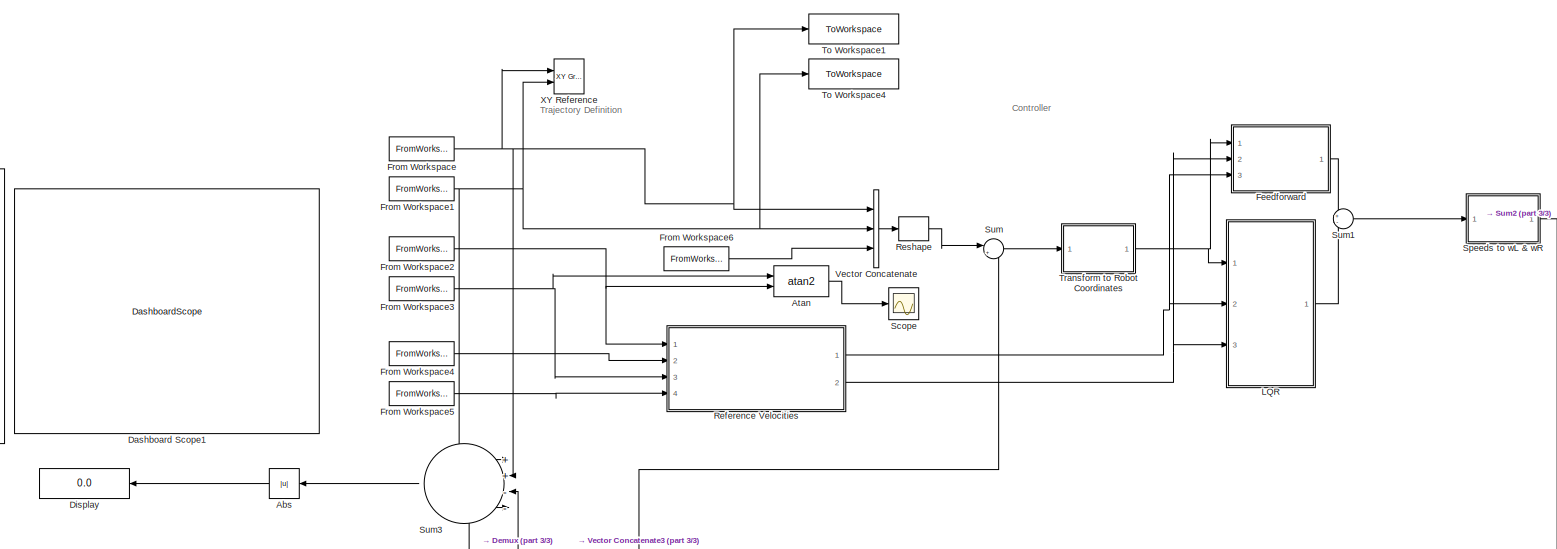
[diagram: root canvas - part 1/3, full width, top band]
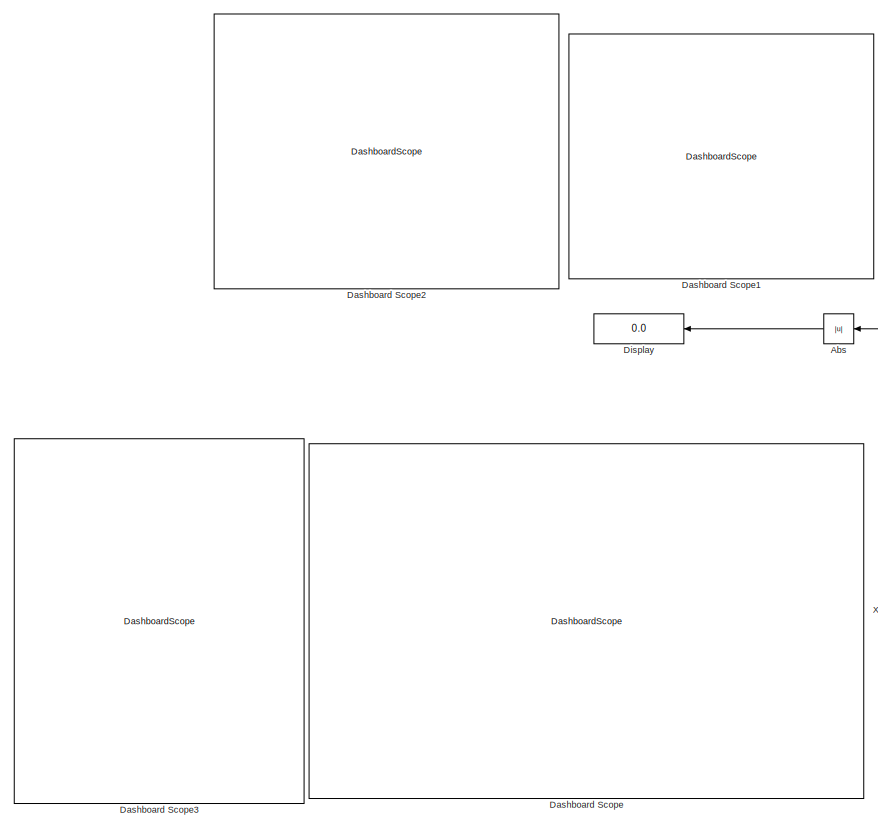
[diagram: root canvas - part 2/3, left side, full height]
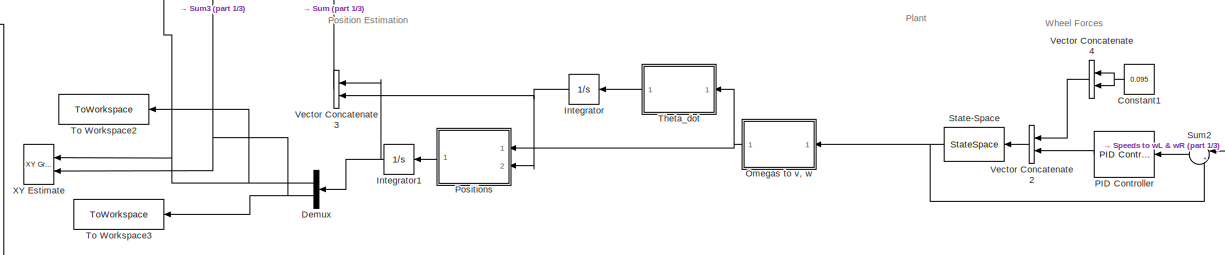
[diagram: root canvas - part 3/3, bottom right region]
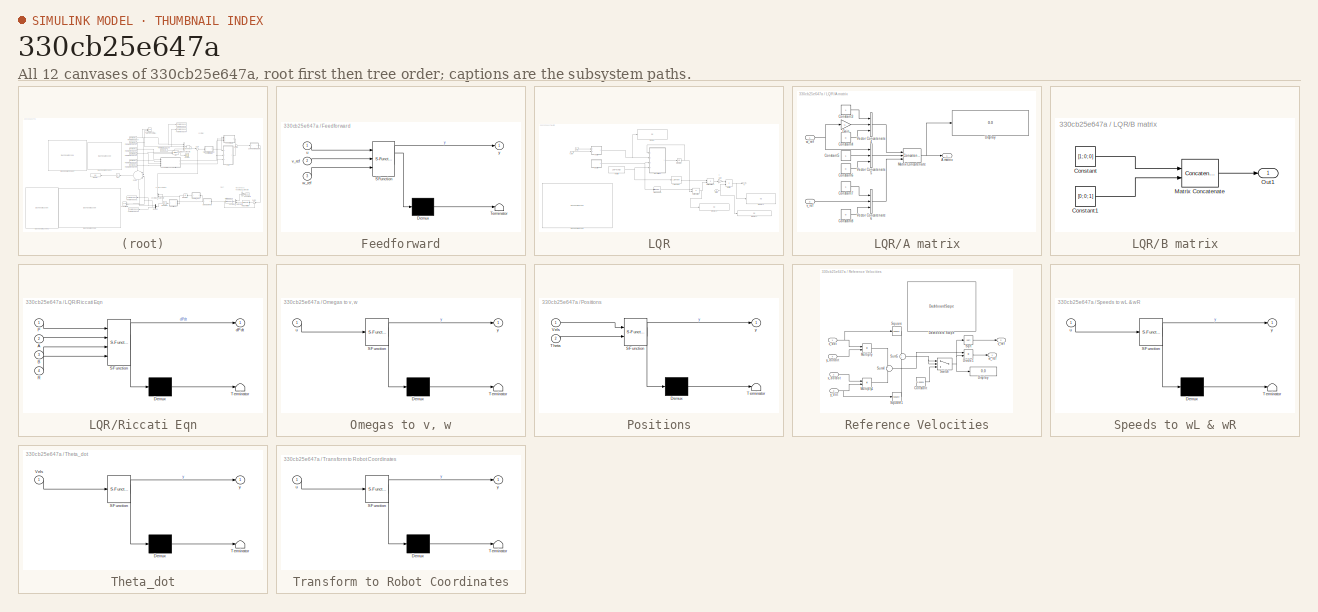
[diagram: thumbnail index - all 12 canvases of the model, root first then tree order]
MODEL slx_330cb25e647a
KIND model
CONFIG AbsTol = auto
CONFIG EnableMultiTasking = off
CONFIG FixedStep = auto
CONFIG MaxStep = auto
CONFIG MinStep = auto
CONFIG RelTol = 1e-3
CONFIG SampleTimeConstraint = Unconstrained
CONFIG Solver = VariableStepAuto
CONFIG SolverName = VariableStepAuto
CONFIG StartTime = 0.0
CONFIG StopTime = 25
BLOCK [Abs] Abs
  SaturateOnIntegerOverflow = off
BLOCK [Trigonometry] Atan
  Operator = atan2
  Ports = [2, 1]
BLOCK [Constant] Constant1
  Value = 0.095
BLOCK [DashboardScope] Dashboard Scope
BLOCK [DashboardScope] Dashboard Scope1
BLOCK [DashboardScope] Dashboard Scope2
BLOCK [DashboardScope] Dashboard Scope3
BLOCK [Demux] Demux
  Outputs = 2
  Ports = [1, 2]
BLOCK [Display] Display
  Decimation = 1
  Ports = [1]
BLOCK [SubSystem] Feedforward
  ErrorFcn = Stateflow.Translate.translate
  PermitHierarchicalResolution = ExplicitOnly
  Ports = [3, 1]
  RequestExecContextInheritance = off
  SFBlockType = MATLAB Function
  TreatAsAtomicUnit = on
BLOCK [Demux] Feedforward/ Demux 
  Outputs = 1
  Ports = [1, 1]
BLOCK [S-Function] Feedforward/ SFunction 
  EnableBusSupport = on
  FunctionName = sf_sfun
  PortCounts = [3 2]
  Ports = [3, 2]
  SFcnIsStateOwnerBlock = off
  SFunctionDeploymentMode = off
  Tag = Stateflow S-Function 3
BLOCK [Terminator] Feedforward/ Terminator 
BLOCK [Inport] Feedforward/u
BLOCK [Inport] Feedforward/v_ref
  Port = 2
BLOCK [Inport] Feedforward/w_ref
  Port = 3
BLOCK [Outport] Feedforward/y
  VectorParamsAs1DForOutWhenUnconnected = off
BLOCK [FromWorkspace] From Workspace
  VariableName = X_trajectory_ts
BLOCK [FromWorkspace] From Workspace1
  VariableName = Y_trajectory_ts
BLOCK [FromWorkspace] From Workspace2
  VariableName = X_dt_ts
BLOCK [FromWorkspace] From Workspace3
  VariableName = Y_dt_ts
BLOCK [FromWorkspace] From Workspace4
  VariableName = X_ddt_ts
BLOCK [FromWorkspace] From Workspace5
  VariableName = Y_ddt_ts
BLOCK [FromWorkspace] From Workspace6
  VariableName = theta_ts
BLOCK [Integrator] Integrator
  Ports = [1, 1]
  WrapState = on
BLOCK [Integrator] Integrator1
  Ports = [1, 1]
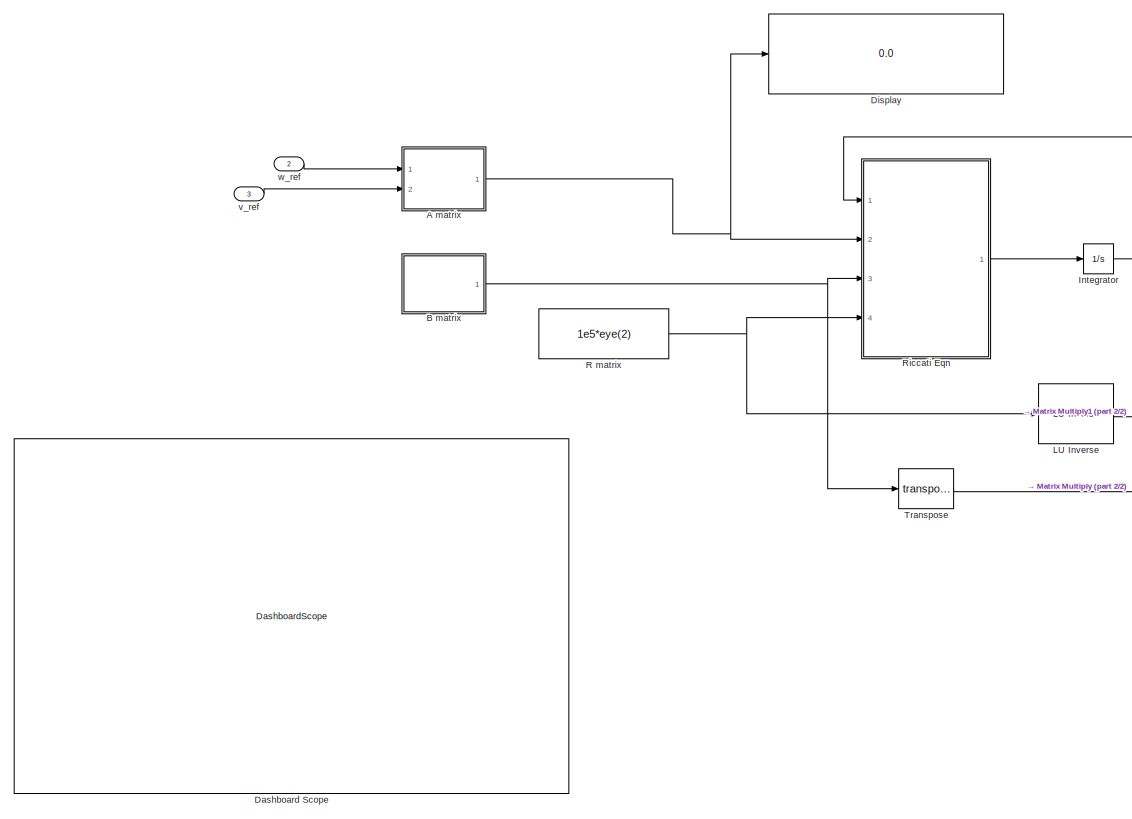
[diagram: LQR - part 1/2, left side, full height]
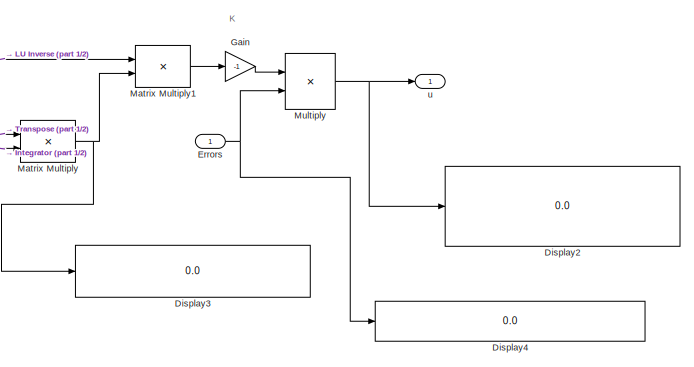
[diagram: LQR - part 2/2, middle right region]
BLOCK [SubSystem] LQR
  Ports = [3, 1]
  RequestExecContextInheritance = off
BLOCK [Reference] LQR/ LU Inverse  REF=dspinverses/ LU Inverse
  Ports = [1, 1]
  SourceBlock = dspinverses/ LU Inverse
  SourceProductBaseCode = DS
  SourceType = LU Inverse
BLOCK [SubSystem] LQR/A matrix
  Ports = [2, 1]
  RequestExecContextInheritance = off
BLOCK [Outport] LQR/A matrix/A matrix
  VectorParamsAs1DForOutWhenUnconnected = off
BLOCK [Constant] LQR/A matrix/Constant3
BLOCK [Constant] LQR/A matrix/Constant4
  Value = 0
BLOCK [Constant] LQR/A matrix/Constant5
BLOCK [Constant] LQR/A matrix/Constant6
  Value = 0
BLOCK [Constant] LQR/A matrix/Constant7
BLOCK [Constant] LQR/A matrix/Constant8
  Value = 0
BLOCK [Display] LQR/A matrix/Display
  Decimation = 1
  Ports = [1]
BLOCK [Gain] LQR/A matrix/Gain
  Gain = -1
BLOCK [Concatenate] LQR/A matrix/Matrix Concatenate
  ConcatenateDimension = 2
  Mode = Multidimensional array
  NumInputs = 3
  Ports = [3, 1]
BLOCK [Concatenate] LQR/A matrix/Vector Concatenate4
  NumInputs = 3
  Ports = [3, 1]
BLOCK [Concatenate] LQR/A matrix/Vector Concatenate5
  NumInputs = 3
  Ports = [3, 1]
BLOCK [Concatenate] LQR/A matrix/Vector Concatenate6
  NumInputs = 3
  Ports = [3, 1]
BLOCK [Inport] LQR/A matrix/v_ref
  Port = 2
  VarSizeSig = No
BLOCK [Inport] LQR/A matrix/w_ref
BLOCK [SubSystem] LQR/B matrix
  Ports = [0, 1]
  RequestExecContextInheritance = off
BLOCK [Constant] LQR/B matrix/Constant
  Value = [1; 0; 0]
  VectorParams1D = off
BLOCK [Constant] LQR/B matrix/Constant1
  Value = [0; 0; 1]
  VectorParams1D = off
BLOCK [Concatenate] LQR/B matrix/Matrix Concatenate
  ConcatenateDimension = 2
  Mode = Multidimensional array
  Ports = [2, 1]
BLOCK [Outport] LQR/B matrix/Out1
  VectorParamsAs1DForOutWhenUnconnected = off
BLOCK [DashboardScope] LQR/Dashboard Scope
BLOCK [Display] LQR/Display
  Decimation = 1
  Ports = [1]
BLOCK [Display] LQR/Display2
  Decimation = 1
  Ports = [1]
BLOCK [Display] LQR/Display3
  Decimation = 1
  Ports = [1]
BLOCK [Display] LQR/Display4
  Decimation = 1
  Ports = [1]
BLOCK [Inport] LQR/Errors
BLOCK [Gain] LQR/Gain
  Gain = -1
BLOCK [Integrator] LQR/Integrator
  Ports = [1, 1]
BLOCK [Product] LQR/Matrix Multiply
  Multiplication = Matrix(*)
  Ports = [2, 1]
BLOCK [Product] LQR/Matrix Multiply1
  Multiplication = Matrix(*)
  Ports = [2, 1]
BLOCK [Product] LQR/Multiply
  Multiplication = Matrix(*)
  Ports = [2, 1]
BLOCK [Constant] LQR/R matrix
  Value = 1e5*eye(2)
  VectorParams1D = off
BLOCK [SubSystem] LQR/Riccati Eqn
  ErrorFcn = Stateflow.Translate.translate
  PermitHierarchicalResolution = ExplicitOnly
  Ports = [4, 1]
  RequestExecContextInheritance = off
  SFBlockType = MATLAB Function
  TreatAsAtomicUnit = on
BLOCK [Demux] LQR/Riccati Eqn/ Demux 
  Outputs = 1
  Ports = [1, 1]
BLOCK [S-Function] LQR/Riccati Eqn/ SFunction 
  EnableBusSupport = on
  FunctionName = sf_sfun
  PortCounts = [4 2]
  Ports = [4, 2]
  SFcnIsStateOwnerBlock = off
  SFunctionDeploymentMode = off
  Tag = Stateflow S-Function 8
BLOCK [Terminator] LQR/Riccati Eqn/ Terminator 
BLOCK [Inport] LQR/Riccati Eqn/A
  Port = 2
BLOCK [Inport] LQR/Riccati Eqn/B
  Port = 3
BLOCK [Inport] LQR/Riccati Eqn/P
BLOCK [Inport] LQR/Riccati Eqn/R
  Port = 4
BLOCK [Outport] LQR/Riccati Eqn/dPdt
  VectorParamsAs1DForOutWhenUnconnected = off
BLOCK [Math] LQR/Transpose
  Operator = transpose
  Ports = [1, 1]
  SignedPower = on
BLOCK [Outport] LQR/u
  VectorParamsAs1DForOutWhenUnconnected = off
BLOCK [Inport] LQR/v_ref
  Port = 3
BLOCK [Inport] LQR/w_ref
  Port = 2
BLOCK [SubSystem] Omegas to v, w
  ErrorFcn = Stateflow.Translate.translate
  PermitHierarchicalResolution = ExplicitOnly
  Ports = [1, 1]
  RequestExecContextInheritance = off
  SFBlockType = MATLAB Function
  TreatAsAtomicUnit = on
BLOCK [Demux] Omegas to v, w/ Demux 
  Outputs = 1
  Ports = [1, 1]
BLOCK [S-Function] Omegas to v, w/ SFunction 
  EnableBusSupport = on
  FunctionName = sf_sfun
  PortCounts = [1 2]
  Ports = [1, 2]
  SFcnIsStateOwnerBlock = off
  SFunctionDeploymentMode = off
  Tag = Stateflow S-Function 7
BLOCK [Terminator] Omegas to v, w/ Terminator 
BLOCK [Inport] Omegas to v, w/u
BLOCK [Outport] Omegas to v, w/y
  VectorParamsAs1DForOutWhenUnconnected = off
BLOCK [Reference] PID Controller  REF=simulink/Continuous/PID Controller
  Ports = [1, 1]
  SourceBlock = simulink/Continuous/PID Controller
  SourceProductBaseCode = SL
  SourceType = PID 1dof
BLOCK [SubSystem] Positions
  ErrorFcn = Stateflow.Translate.translate
  PermitHierarchicalResolution = ExplicitOnly
  Ports = [2, 1]
  RequestExecContextInheritance = off
  SFBlockType = MATLAB Function
  TreatAsAtomicUnit = on
BLOCK [Demux] Positions/ Demux 
  Outputs = 1
  Ports = [1, 1]
BLOCK [S-Function] Positions/ SFunction 
  EnableBusSupport = on
  FunctionName = sf_sfun
  PortCounts = [2 2]
  Ports = [2, 2]
  SFcnIsStateOwnerBlock = off
  SFunctionDeploymentMode = off
  Tag = Stateflow S-Function 6
BLOCK [Terminator] Positions/ Terminator 
BLOCK [Inport] Positions/Theta
  Port = 2
BLOCK [Inport] Positions/Vels
BLOCK [Outport] Positions/y
  VectorParamsAs1DForOutWhenUnconnected = off
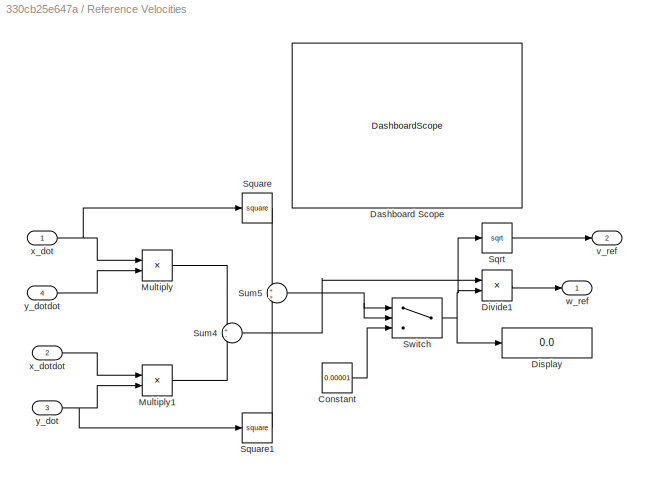
BLOCK [SubSystem] Reference Velocities
  Ports = [4, 2]
  RequestExecContextInheritance = off
BLOCK [Constant] Reference Velocities/Constant
  Value = 0.00001
BLOCK [DashboardScope] Reference Velocities/Dashboard Scope
BLOCK [Display] Reference Velocities/Display
  Decimation = 1
  Ports = [1]
BLOCK [Product] Reference Velocities/Divide1
  Inputs = */
  OutMin = [0.0000001]
  Ports = [2, 1]
BLOCK [Product] Reference Velocities/Multiply
  Ports = [2, 1]
BLOCK [Product] Reference Velocities/Multiply1
  Ports = [2, 1]
BLOCK [Sqrt] Reference Velocities/Sqrt
BLOCK [Math] Reference Velocities/Square
  Operator = square
  Ports = [1, 1]
  SignedPower = on
BLOCK [Math] Reference Velocities/Square1
  Operator = square
  Ports = [1, 1]
  SignedPower = on
BLOCK [Sum] Reference Velocities/Sum4
  Inputs = +-
  Ports = [2, 1]
BLOCK [Sum] Reference Velocities/Sum5
  Ports = [2, 1]
BLOCK [Switch] Reference Velocities/Switch
  Criteria = u2 ~= 0
  InputSameDT = off
  SaturateOnIntegerOverflow = off
BLOCK [Outport] Reference Velocities/v_ref
  Port = 2
  VectorParamsAs1DForOutWhenUnconnected = off
BLOCK [Outport] Reference Velocities/w_ref
  VectorParamsAs1DForOutWhenUnconnected = off
BLOCK [Inport] Reference Velocities/x_dot
BLOCK [Inport] Reference Velocities/x_dotdot
  Port = 2
BLOCK [Inport] Reference Velocities/y_dot
  Port = 3
BLOCK [Inport] Reference Velocities/y_dotdot
  Port = 4
BLOCK [Reshape] Reshape
  OutputDimensionality = Column vector (2-D)
  Ports = [1, 1]
BLOCK [Scope] Scope
  Floating = off
  NumInputPorts = 1
  Ports = [1]
  ScopeSpecificationString = Simulink.scopes.TimeScopeBlockCfg('CurrentConfiguration', extmgr.ConfigurationSet(extmgr.Configuration('Core','General UI',true),extmgr.Configuration('Core','Source UI',true),extmgr.Configuration('Sources','WiredSimulink',true),extmgr.Configuration('Visuals','Time Domain',true,'SerializedDisplays',{struct('MinYLimReal','-3.8992','MaxYLimReal','3.89184','YLabelReal','','MinYLimMag','0.00000','MaxYL...<+1349ch>
BLOCK [SubSystem] Speeds to wL & wR
  ErrorFcn = Stateflow.Translate.translate
  PermitHierarchicalResolution = ExplicitOnly
  Ports = [1, 1]
  RequestExecContextInheritance = off
  SFBlockType = MATLAB Function
  TreatAsAtomicUnit = on
BLOCK [Demux] Speeds to wL & wR/ Demux 
  Outputs = 1
  Ports = [1, 1]
BLOCK [S-Function] Speeds to wL & wR/ SFunction 
  EnableBusSupport = on
  FunctionName = sf_sfun
  PortCounts = [1 2]
  Ports = [1, 2]
  SFcnIsStateOwnerBlock = off
  SFunctionDeploymentMode = off
  Tag = Stateflow S-Function 4
BLOCK [Terminator] Speeds to wL & wR/ Terminator 
BLOCK [Inport] Speeds to wL & wR/u
BLOCK [Outport] Speeds to wL & wR/y
  VectorParamsAs1DForOutWhenUnconnected = off
BLOCK [StateSpace] State-Space
  A = [0, 0, 0, 0; 0, 0, 0, 0; 0, 0, -1585.21, 0; 0, 0, 0, -1585.21]
  B = [1.7699, 1.7699, 0, 0; 18.82, -18.82, 0, 0; -15, 0, 714.29, 0; 0, -15, 0, 714.29]
  C = [0, 0, 1, 0; 0, 0, 0, 1]
  D = [0, 0, 0, 0; 0, 0, 0, 0]
  InitialCondition = 0
  Ports = [1, 1]
BLOCK [Sum] Sum
  Inputs = |+-
  Ports = [2, 1]
BLOCK [Sum] Sum1
  Inputs = +-
  Ports = [2, 1]
BLOCK [Sum] Sum2
  Inputs = |+-
  Ports = [2, 1]
BLOCK [Sum] Sum3
  Inputs = ++--
  Ports = [4, 1]
BLOCK [SubSystem] Theta_dot
  ErrorFcn = Stateflow.Translate.translate
  PermitHierarchicalResolution = ExplicitOnly
  Ports = [1, 1]
  RequestExecContextInheritance = off
  SFBlockType = MATLAB Function
  TreatAsAtomicUnit = on
BLOCK [Demux] Theta_dot/ Demux 
  Outputs = 1
  Ports = [1, 1]
BLOCK [S-Function] Theta_dot/ SFunction 
  EnableBusSupport = on
  FunctionName = sf_sfun
  PortCounts = [1 2]
  Ports = [1, 2]
  SFcnIsStateOwnerBlock = off
  SFunctionDeploymentMode = off
  Tag = Stateflow S-Function 5
BLOCK [Terminator] Theta_dot/ Terminator 
BLOCK [Inport] Theta_dot/Vels
BLOCK [Outport] Theta_dot/y
  VectorParamsAs1DForOutWhenUnconnected = off
BLOCK [ToWorkspace] To Workspace1
  FixptAsFi = on
  MaxDataPoints = inf
  Ports = [1]
  SampleTime = -1
  VariableName = x_ref
BLOCK [ToWorkspace] To Workspace2
  FixptAsFi = on
  MaxDataPoints = inf
  Ports = [1]
  SampleTime = -1
  VariableName = x_est
BLOCK [ToWorkspace] To Workspace3
  FixptAsFi = on
  MaxDataPoints = inf
  Ports = [1]
  SampleTime = -1
  VariableName = y_est
BLOCK [ToWorkspace] To Workspace4
  FixptAsFi = on
  MaxDataPoints = inf
  Ports = [1]
  SampleTime = -1
  VariableName = y_ref
BLOCK [SubSystem] Transform to Robot Coordinates
  ErrorFcn = Stateflow.Translate.translate
  PermitHierarchicalResolution = ExplicitOnly
  Ports = [1, 1]
  RequestExecContextInheritance = off
  SFBlockType = MATLAB Function
  TreatAsAtomicUnit = on
BLOCK [Demux] Transform to Robot Coordinates/ Demux 
  Outputs = 1
  Ports = [1, 1]
BLOCK [S-Function] Transform to Robot Coordinates/ SFunction 
  EnableBusSupport = on
  FunctionName = sf_sfun
  PortCounts = [1 2]
  Ports = [1, 2]
  SFcnIsStateOwnerBlock = off
  SFunctionDeploymentMode = off
  Tag = Stateflow S-Function 2
BLOCK [Terminator] Transform to Robot Coordinates/ Terminator 
BLOCK [Inport] Transform to Robot Coordinates/u
BLOCK [Outport] Transform to Robot Coordinates/y
  VectorParamsAs1DForOutWhenUnconnected = off
BLOCK [Concatenate] Vector Concatenate
  NumInputs = 3
  Ports = [3, 1]
BLOCK [Concatenate] Vector Concatenate2
  Ports = [2, 1]
BLOCK [Concatenate] Vector Concatenate3
  Ports = [2, 1]
BLOCK [Concatenate] Vector Concatenate4
  Ports = [2, 1]
BLOCK [Reference] XY Estimate  REF=simulink/Sinks/XY Graph
  Commented = on
  Ports = [2]
  SourceBlock = simulink/Sinks/XY Graph
  SourceProductBaseCode = SL
  SourceType = XY scope.
BLOCK [Reference] XY Reference  REF=simulink/Sinks/XY Graph
  Commented = on
  Ports = [2]
  SourceBlock = simulink/Sinks/XY Graph
  SourceProductBaseCode = SL
  SourceType = XY scope.
ANNOTATION (root): Controller
ANNOTATION (root): Plant
ANNOTATION (root): Position Estimation
ANNOTATION (root): Trajectory Definition
ANNOTATION (root): Wheel Forces
ANNOTATION LQR: K
LINE Abs:1 -> Display:1
LINE Atan:1 -> Scope:1
NET Constant1:1 -> Vector Concatenate4:1, Vector Concatenate4:2
NET Demux:1 -> Sum3:4, To Workspace2:1, XY Estimate:1
NET Demux:2 -> Sum3:3, To Workspace3:1, XY Estimate:2
LINE Feedforward:1 -> Sum1:1
NET From Workspace1:1 -> Sum3:1, To Workspace4:1, Vector Concatenate:2, XY Reference:2
NET From Workspace2:1 -> Atan:2, Reference Velocities:1
NET From Workspace3:1 -> Atan:1, Reference Velocities:3
LINE From Workspace4:1 -> Reference Velocities:2
LINE From Workspace5:1 -> Reference Velocities:4
LINE From Workspace6:1 -> Vector Concatenate:3
NET From Workspace:1 -> Sum3:2, To Workspace1:1, Vector Concatenate:1, XY Reference:1
NET Integrator1:1 -> Demux:1, Vector Concatenate3:1
NET Integrator:1 -> Positions:2, Vector Concatenate3:2
LINE LQR/ LU Inverse:1 -> LQR/Matrix Multiply1:1
LINE LQR/A matrix/Constant3:1 -> LQR/A matrix/Vector Concatenate4:1
LINE LQR/A matrix/Constant4:1 -> LQR/A matrix/Vector Concatenate4:3
LINE LQR/A matrix/Constant5:1 -> LQR/A matrix/Vector Concatenate5:2
LINE LQR/A matrix/Constant6:1 -> LQR/A matrix/Vector Concatenate5:3
LINE LQR/A matrix/Constant7:1 -> LQR/A matrix/Vector Concatenate6:1
LINE LQR/A matrix/Constant8:1 -> LQR/A matrix/Vector Concatenate6:3
LINE LQR/A matrix/Gain:1 -> LQR/A matrix/Vector Concatenate4:2
NET LQR/A matrix/Matrix Concatenate:1 -> LQR/A matrix/A matrix:1, LQR/A matrix/Display:1
LINE LQR/A matrix/Vector Concatenate4:1 -> LQR/A matrix/Matrix Concatenate:1
LINE LQR/A matrix/Vector Concatenate5:1 -> LQR/A matrix/Matrix Concatenate:2
LINE LQR/A matrix/Vector Concatenate6:1 -> LQR/A matrix/Matrix Concatenate:3
LINE LQR/A matrix/v_ref:1 -> LQR/A matrix/Vector Concatenate6:2
NET LQR/A matrix/w_ref:1 -> LQR/A matrix/Gain:1, LQR/A matrix/Vector Concatenate5:1
NET LQR/A matrix:1 -> LQR/Display:1, LQR/Riccati Eqn:2
LINE LQR/B matrix/Constant1:1 -> LQR/B matrix/Matrix Concatenate:2
LINE LQR/B matrix/Constant:1 -> LQR/B matrix/Matrix Concatenate:1
LINE LQR/B matrix/Matrix Concatenate:1 -> LQR/B matrix/Out1:1
NET LQR/B matrix:1 -> LQR/Riccati Eqn:3, LQR/Transpose:1
NET LQR/Errors:1 -> LQR/Display4:1, LQR/Multiply:2
LINE LQR/Gain:1 -> LQR/Multiply:1
NET LQR/Integrator:1 -> LQR/Matrix Multiply:2, LQR/Riccati Eqn:1
LINE LQR/Matrix Multiply1:1 -> LQR/Gain:1
NET LQR/Matrix Multiply:1 -> LQR/Display3:1, LQR/Matrix Multiply1:2
NET LQR/Multiply:1 -> LQR/Display2:1, LQR/u:1
NET LQR/R matrix:1 -> LQR/ LU Inverse:1, LQR/Riccati Eqn:4
LINE LQR/Riccati Eqn:1 -> LQR/Integrator:1
LINE LQR/Transpose:1 -> LQR/Matrix Multiply:1
LINE LQR/v_ref:1 -> LQR/A matrix:2
LINE LQR/w_ref:1 -> LQR/A matrix:1
LINE LQR:1 -> Sum1:2
NET Omegas to v, w:1 -> Positions:1, Theta_dot:1
LINE PID Controller:1 -> Vector Concatenate2:2
LINE Positions:1 -> Integrator1:1
LINE Reference Velocities/Constant:1 -> Reference Velocities/Switch:3
LINE Reference Velocities/Divide1:1 -> Reference Velocities/w_ref:1
LINE Reference Velocities/Multiply1:1 -> Reference Velocities/Sum4:2
LINE Reference Velocities/Multiply:1 -> Reference Velocities/Sum4:1
LINE Reference Velocities/Sqrt:1 -> Reference Velocities/v_ref:1
LINE Reference Velocities/Square1:1 -> Reference Velocities/Sum5:2
LINE Reference Velocities/Square:1 -> Reference Velocities/Sum5:1
LINE Reference Velocities/Sum4:1 -> Reference Velocities/Divide1:1
NET Reference Velocities/Sum5:1 -> Reference Velocities/Switch:1, Reference Velocities/Switch:2
NET Reference Velocities/Switch:1 -> Reference Velocities/Display:1, Reference Velocities/Divide1:2, Reference Velocities/Sqrt:1
NET Reference Velocities/x_dot:1 -> Reference Velocities/Multiply:1, Reference Velocities/Square:1
LINE Reference Velocities/x_dotdot:1 -> Reference Velocities/Multiply1:1
NET Reference Velocities/y_dot:1 -> Reference Velocities/Multiply1:2, Reference Velocities/Square1:1
LINE Reference Velocities/y_dotdot:1 -> Reference Velocities/Multiply:2
NET Reference Velocities:1 -> Feedforward:3, LQR:2
NET Reference Velocities:2 -> Feedforward:2, LQR:3
LINE Reshape:1 -> Sum:1
LINE Speeds to wL & wR:1 -> Sum2:1
NET State-Space:1 -> Omegas to v, w:1, Sum2:2
LINE Sum1:1 -> Speeds to wL & wR:1
LINE Sum2:1 -> PID Controller:1
LINE Sum3:1 -> Abs:1
LINE Sum:1 -> Transform to Robot Coordinates:1
LINE Theta_dot:1 -> Integrator:1
NET Transform to Robot Coordinates:1 -> Feedforward:1, LQR:1
LINE Vector Concatenate2:1 -> State-Space:1
LINE Vector Concatenate3:1 -> Sum:2
LINE Vector Concatenate4:1 -> Vector Concatenate2:1
LINE Vector Concatenate:1 -> Reshape:1
note: NET lines group one-source signal fan-out (src -> all destinations, sorted); 1:1 wires keep LINE
CHART Transform to 
Robot Coordinates states=1 transitions=1
  STATE_LABEL 'eML_blk_kernel()'
  STATE_LABEL 'SCRIPT:\nfunction y = fcn(u)\n\ntheta = u(3);\nA = [cos(theta), sin(theta), 0;\n    -sin(theta), cos(theta), 0;\n    0, 0, 1];\n\ny = A*u;\n\n'
CHART Feedforward states=1 transitions=1
  STATE_LABEL 'eML_blk_kernel()'
  STATE_LABEL 'SCRIPT:\nfunction y = fcn(u, v_ref, w_ref)\n\n    e3 = u(3);\n    \n    y = [cos(e3)*v_ref;\n        w_ref];\n\n'
CHART Speeds to 
wL & wR states=1 transitions=1
  STATE_LABEL 'eML_blk_kernel()'
  STATE_LABEL 'SCRIPT:\nfunction y = fcn(u)\n\nr = 0.021; % Wheel radius\nD = 0.145; % Robot diameter\n\nv = u(1);\nw = u(2);\n\nv_r = (2*v+w*D)/2;\nv_l = (2*v-w*D)/2;\n\nw_l = v_l/r;\nw_r = v_r/r;\n\ny =  [w_l;\n    w_r];\n\n'
CHART Theta_dot states=1 transitions=1
  STATE_LABEL 'eML_blk_kernel()'
  STATE_LABEL 'SCRIPT:\nfunction y = fcn(Vels)\n\ny = Vels(2);\n\n'
CHART Positions states=1 transitions=1
  STATE_LABEL 'eML_blk_kernel()'
  STATE_LABEL 'SCRIPT:\nfunction y = fcn(Vels, Theta)\n\nv = Vels(1);\n\nx1 = v * cos(Theta);\nx2 = v * sin(Theta);\n\ny = [x1; x2];\n'
CHART Omegas 
to v, w states=1 transitions=1
  STATE_LABEL 'eML_blk_kernel()'
  STATE_LABEL 'SCRIPT:\nfunction y = fcn(u)\nr = 0.021; % Wheel radius\nD = 0.145; % Robot diameter\n\nv = u*r; \n\nv_l = v(1);\nv_r = v(2);\n\nomega = (v_r - v_l)/D;\nv = (v_r + v_l)/2;\n\ny = [v; omega];\n\n'
CHART LQR/Riccati Eqn states=1 transitions=1
  STATE_LABEL 'eML_blk_kernel()'
  STATE_LABEL "SCRIPT:\nfunction dPdt = mRiccati(P,A,B,R)\n\n% A = rand(3,3);\n% B = rand(3,2);\nQ = diag([1 1 10]);\n% R = 1e-4*diag([1 1]);\n% P = rand(3,3);\n\n% P2 = (A'*P - (P*B)*pinv(R)*(B'*P) + Q)*pinv(-A);\n\n% Continuous Riccati differential equation\ndPdt = -(A'*P + P*A - (P*B)*inv(R)*(B'*P) + Q); \n\n"
CHART  states=0 transitions=0
CHART  states=0 transitions=0
CHART  states=0 transitions=0
CHART  states=0 transitions=0
CHART  states=0 transitions=0
CHART  states=0 transitions=0
CHART  states=0 transitions=0
